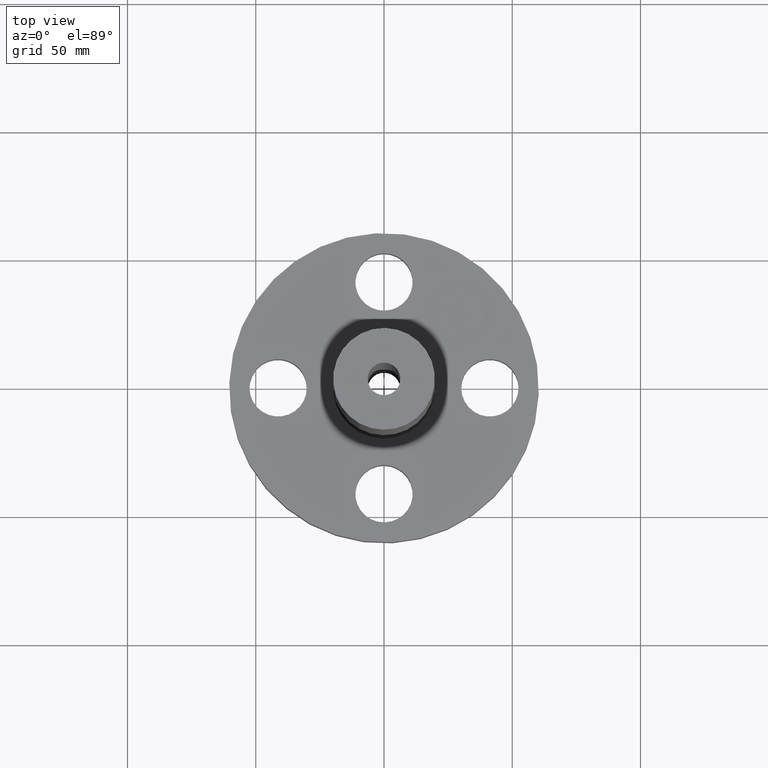
[diagram: clean part render]
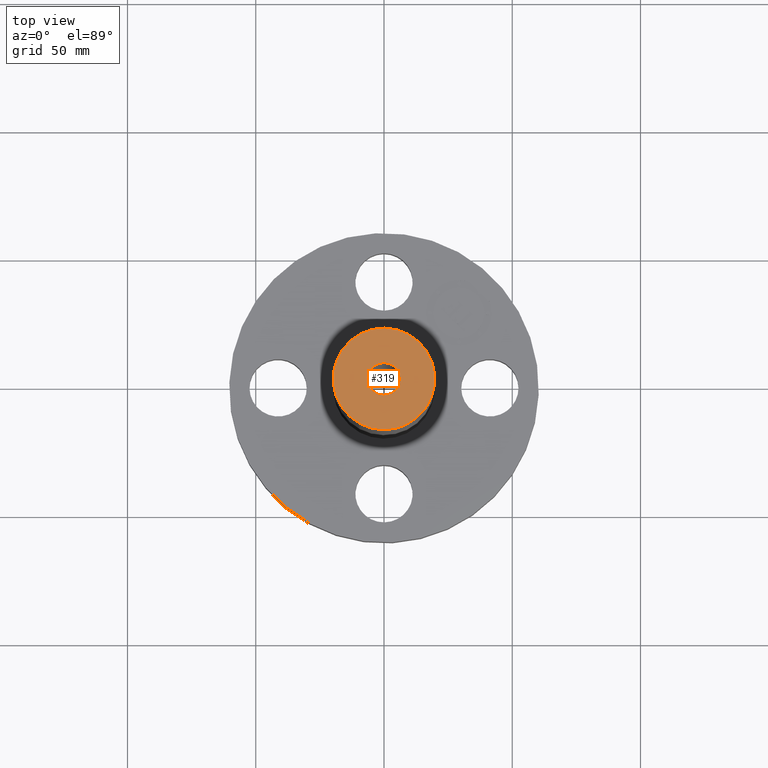
[diagram: same view with one face highlighted and labeled with its STEP entity id]
A machine part, top view. The second image highlights one B-rep face of the part: STEP entity #319.
In plain terms, the highlighted planar face has unit normal (0, 0, -1).
Its self-contained STEP definition (entity closure, byte-faithful):
#258=AXIS2_PLACEMENT_3D('Circle Axis2P3D',#256,#257,$) ;
#282=AXIS2_PLACEMENT_3D('Circle Axis2P3D',#280,#281,$) ;
#295=AXIS2_PLACEMENT_3D('Plane Axis2P3D',#292,#293,#294) ;
#303=AXIS2_PLACEMENT_3D('Circle Axis2P3D',#301,#302,$) ;
#312=AXIS2_PLACEMENT_3D('Circle Axis2P3D',#310,#311,$) ;
#253=CARTESIAN_POINT('Vertex',(0.373951920113,0.684514398277,8.75000000003)) ;
#256=CARTESIAN_POINT('Axis2P3D Location',(0.,0.,8.75000000003)) ;
#260=CARTESIAN_POINT('Vertex',(-0.373951920113,-0.684514398277,8.75000000003)) ;
#280=CARTESIAN_POINT('Axis2P3D Location',(0.,0.,8.75000000003)) ;
#292=CARTESIAN_POINT('Axis2P3D Location',(0.,0.780000000003,8.75000000003)) ;
#301=CARTESIAN_POINT('Axis2P3D Location',(0.,0.,8.75000000003)) ;
#305=CARTESIAN_POINT('Vertex',(-0.119856384652,-0.219395640473,8.75000000004)) ;
#307=CARTESIAN_POINT('Vertex',(0.119856384652,0.219395640473,8.75000000004)) ;
#310=CARTESIAN_POINT('Axis2P3D Location',(0.,0.,8.75000000003)) ;
#257=DIRECTION('Axis2P3D Direction',(0.,0.,-0.0393700787402)) ;
#281=DIRECTION('Axis2P3D Direction',(0.,0.,-0.0393700787402)) ;
#293=DIRECTION('Axis2P3D Direction',(0.,0.,-0.0393700787402)) ;
#294=DIRECTION('Axis2P3D XDirection',(0.0393700787402,0.,0.)) ;
#302=DIRECTION('Axis2P3D Direction',(0.,0.,-0.0393700787402)) ;
#311=DIRECTION('Axis2P3D Direction',(0.,0.,-0.0393700787402)) ;
#298=ORIENTED_EDGE('',*,*,#262,.F.) ;
#299=ORIENTED_EDGE('',*,*,#284,.F.) ;
#316=ORIENTED_EDGE('',*,*,#309,.T.) ;
#317=ORIENTED_EDGE('',*,*,#314,.T.) ;
#318=FACE_BOUND('',#315,.T.) ;
#319=ADVANCED_FACE('PartBody',(#300,#318),#296,.F.) ;
#259=CIRCLE('generated circle',#258,0.780000000003) ;
#283=CIRCLE('generated circle',#282,0.780000000003) ;
#304=CIRCLE('generated circle',#303,0.250000000001) ;
#313=CIRCLE('generated circle',#312,0.250000000001) ;
#262=EDGE_CURVE('',#254,#261,#259,.T.) ;
#284=EDGE_CURVE('',#261,#254,#283,.T.) ;
#309=EDGE_CURVE('',#306,#308,#304,.T.) ;
#314=EDGE_CURVE('',#308,#306,#313,.T.) ;
#297=EDGE_LOOP('',(#298,#299)) ;
#315=EDGE_LOOP('',(#316,#317)) ;
#300=FACE_OUTER_BOUND('',#297,.T.) ;
#296=PLANE('',#295) ;
#254=VERTEX_POINT('',#253) ;
#261=VERTEX_POINT('',#260) ;
#306=VERTEX_POINT('',#305) ;
#308=VERTEX_POINT('',#307) ;